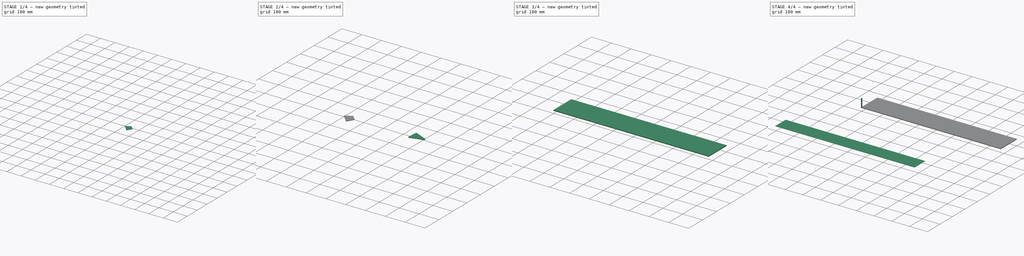
[diagram: build sequence overview — one tinted view per stage of 4, left to right]
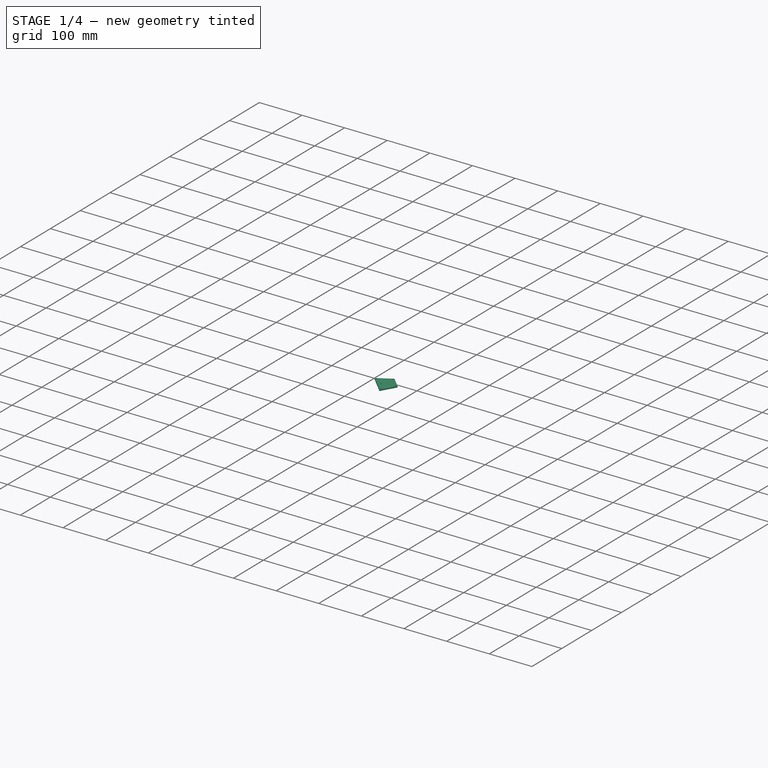
[diagram: stage 1 of 4 — iso view after this stage's code; geometry added in this stage tinted green]
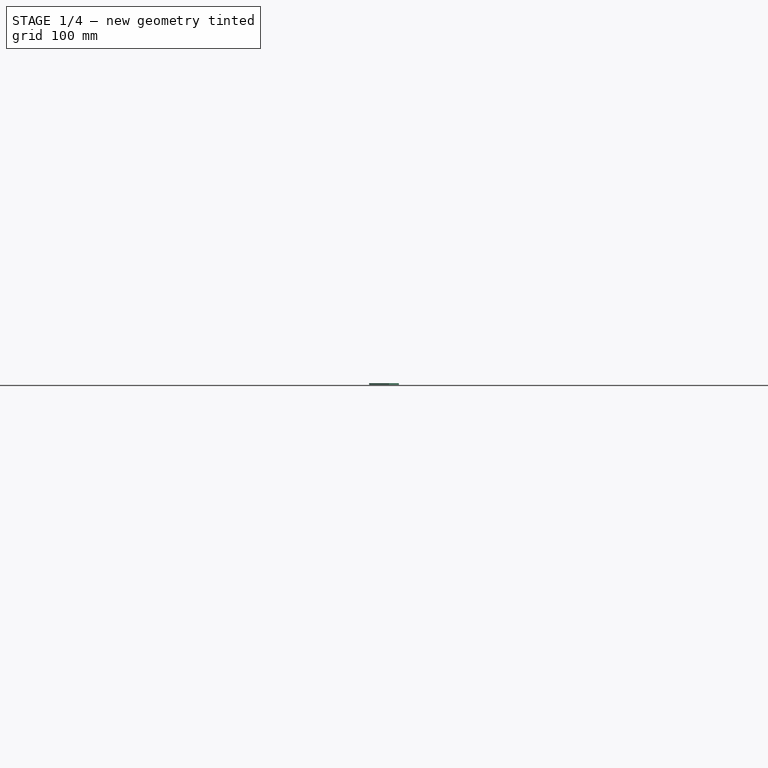
[diagram: stage 1 of 4 — front view after this stage's code; geometry added in this stage tinted green]
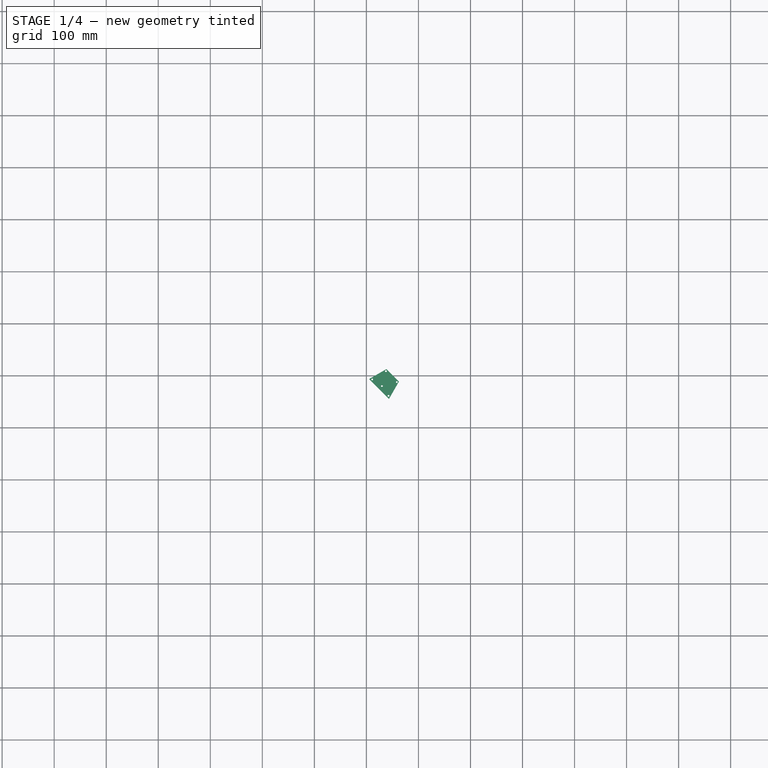
[diagram: stage 1 of 4 — top view after this stage's code; geometry added in this stage tinted green]
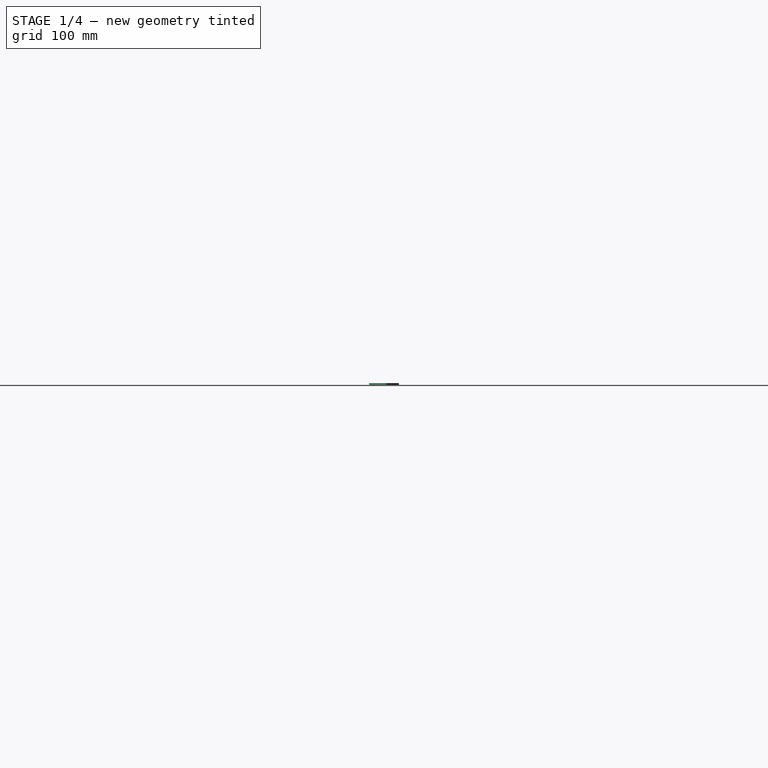
[diagram: stage 1 of 4 — right view after this stage's code; geometry added in this stage tinted green]
FCSTD DOCUMENT  (FreeCAD 0.21R32532 (Git))
Label: composit_full_size2part_top_cut
License: All rights reserved
LicenseURL: http://en.wikipedia.org/wiki/All_rights_reserved
objects: Part::FeaturePython×8, Path::FeaturePython×8, Sketcher::SketchObject×6, App::DocumentObjectGroup×6, PartDesign::Body×3, App::FeaturePython×2, PartDesign::Pad×2, PartDesign::SubShapeBinder×2, PartDesign::Hole×2, App::Link×1, Part::Feature×1, PartDesign::FeatureBase×1, Part::Part2DObjectPython×1
note: 32 computed .brp shape members not serialized (recipe doc carries the construction recipe); baked Part::Feature solids carry a one-line shape summary decoded from their .brp
EXTERNAL_REF file=composit_full_size2part.FCStd obj=Body070

FEATURE [PartDesign::Body] Body001
  Group = -> [Sketch,Pad,Binder,Hole]
  Origin = -> Origin001
  Tip = -> Hole
FEATURE [Sketcher::SketchObject] Sketch001
  FullyConstrained = true
  MapMode = 5
  Support = -> [XY_Plane002]
  sketch-geometry (4):
    g0: LineSegment StartX=-27 StartY=122 StartZ=0 EndX=-17 EndY=159 EndZ=0
    g1: LineSegment StartX=-17 StartY=159 StartZ=0 EndX=17 EndY=159 EndZ=0
    g2: LineSegment StartX=17 StartY=159 StartZ=0 EndX=27 EndY=122 EndZ=0
    g3: LineSegment StartX=27 StartY=122 StartZ=0 EndX=-27 EndY=122 EndZ=0
  constraints (10):
    c: Coincident(g0,g1)
    c: Coincident(g1,g2)
    c: Coincident(g2,g3)
    c: Coincident(g3,g0)
    c: Symmetric(g0,g2,g-2)
    c: Symmetric(g0,g1,g-2)
    c: DistanceX(g2) = 27
    c: DistanceY(g2) = 122
    c: DistanceX(g2,g1) = -10
    c: DistanceY(g2,g1) = 37
FEATURE [PartDesign::Pad] Pad001
  Direction = (0,0,1)
  Length = 3
  Length2 = 10
  Profile = -> Sketch001
  ReferenceAxis = -> Sketch001 [N_Axis]
  Type = 0
FEATURE [PartDesign::SubShapeBinder] Binder001
  BindCopyOnChange = 0
  BindMode = 0
  ClaimChildren = false
  Context = -> Body002 [Binder001.]
  Fuse = false
  MakeFace = true
  OffsetFill = false
  OffsetIntersection = false
  OffsetJoinType = 0
  OffsetOpenResult = false
  PartialLoad = false
  Relative = true
  Support = -> [Link[Hole102.Binder233.]]
  _Version = 2
FEATURE [PartDesign::Hole] Hole001
  BaseFeature = -> Pad001
  CustomThreadClearance = 0
  Depth = 25
  DepthType = 0
  Diameter = 3.4
  DrillForDepth = false
  DrillPoint = 1
  DrillPointAngle = 118
  HoleCutCountersinkAngle = 90
  HoleCutCustomValues = false
  HoleCutDepth = 0
  HoleCutDiameter = 6.1
  HoleCutType = 0
  ModelThread = false
  Profile = -> Binder001
  Reversed = true
  Tapered = false
  TaperedAngle = 90
  ThreadClass = 0
  ThreadDepth = 25
  ThreadDepthType = 0
  ThreadDirection = 0
  ThreadFit = 0
  ThreadSize = 0
  ThreadType = 0
  Threaded = false
  UseCustomThreadClearance = false
FEATURE [Part::FeaturePython] Clone003  label="Model-Body003"  # Draft clone (typed FeaturePython)
  AttacherType = Attacher::AttachEngine3D
  Fuse = false
  Objects = -> [Body002]
  PathResource = Model
  Placement = pos=(-62,-11.5,0) rot=(0,0,-1;0.785398rad)
  Scale = (1,1,1)
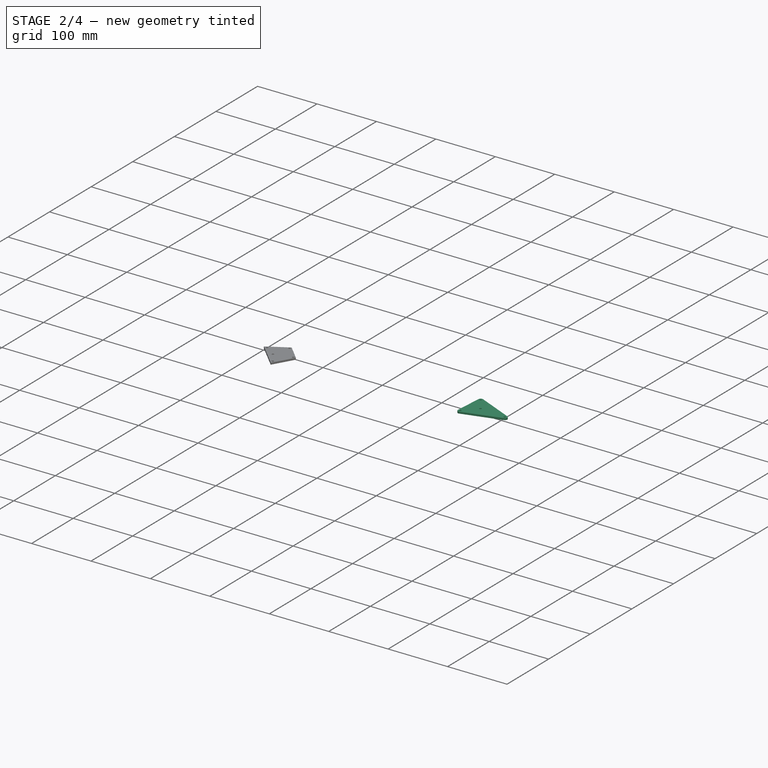
[diagram: stage 2 of 4 — iso view after this stage's code; geometry added in this stage tinted green]
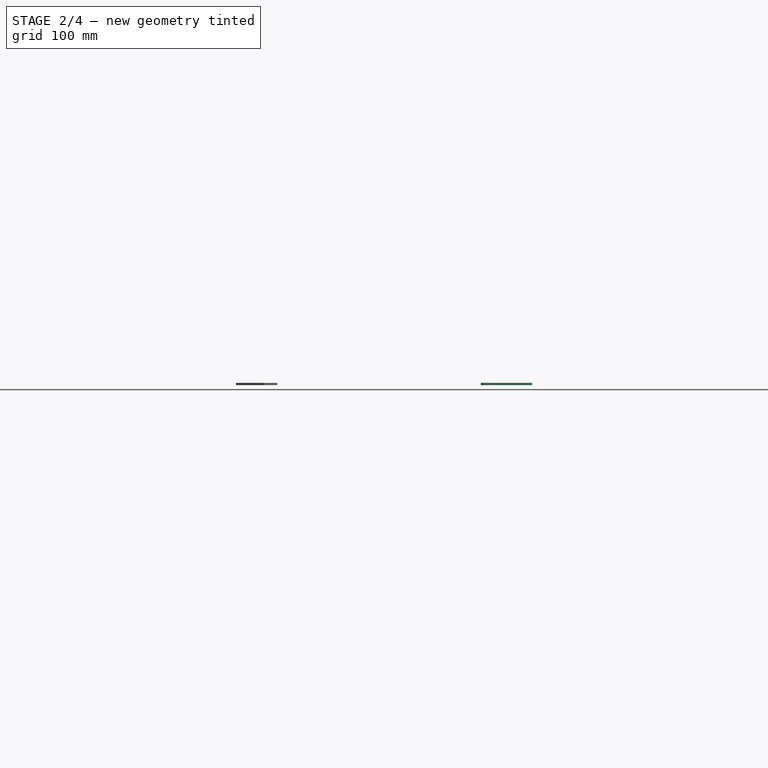
[diagram: stage 2 of 4 — front view after this stage's code; geometry added in this stage tinted green]
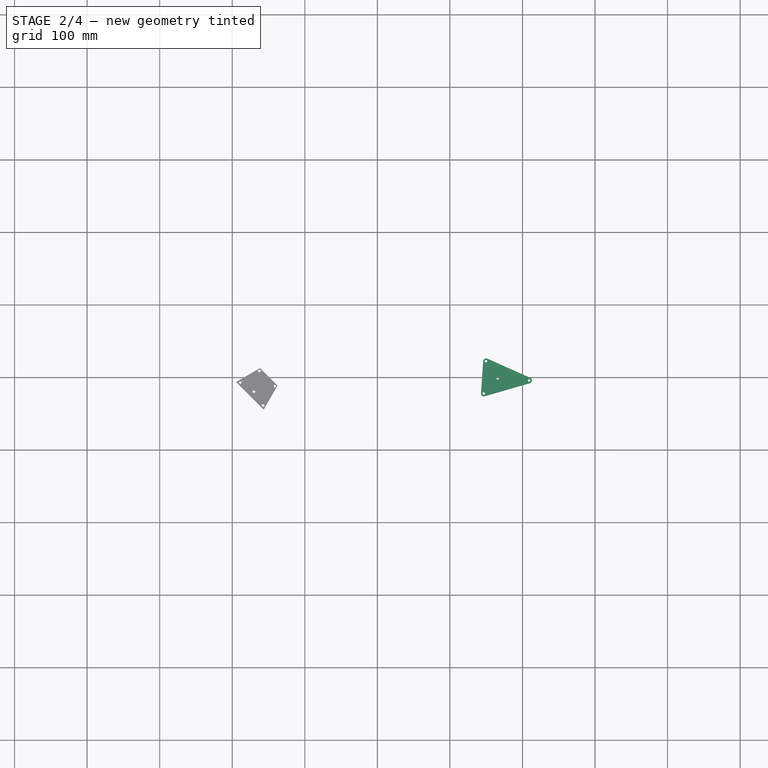
[diagram: stage 2 of 4 — top view after this stage's code; geometry added in this stage tinted green]
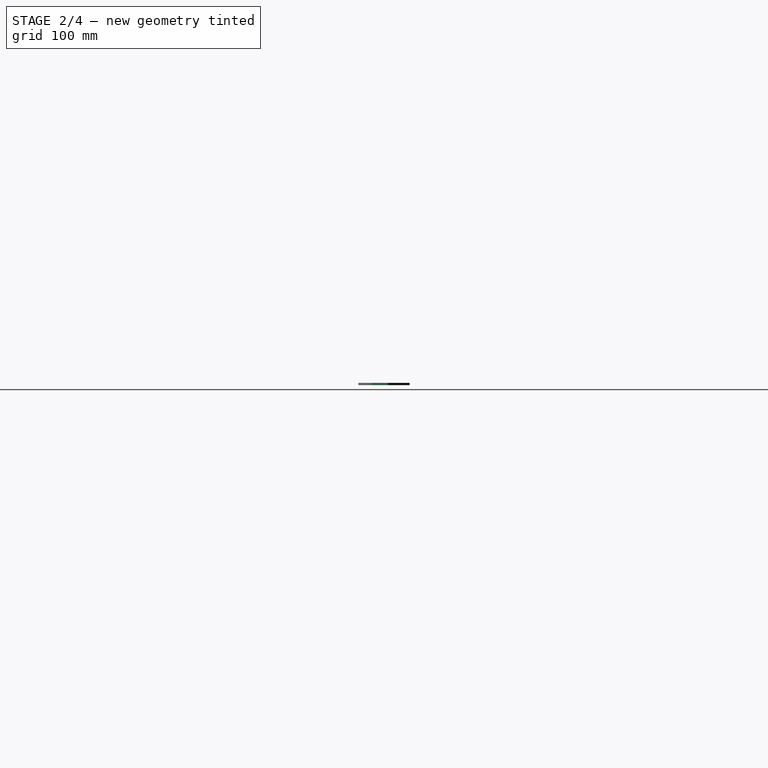
[diagram: stage 2 of 4 — right view after this stage's code; geometry added in this stage tinted green]
FEATURE [Path::FeaturePython] Deburr  # Path/CAM operation (typed FeaturePython)
  Active = true
  Base = -> [Clone001]
  ClearanceHeight = 6.3
  CoolantMode = 0
  CycleTime = 00:00:23
  Direction = 0
  EntryPoint = 0
  ExtraDepth = 0
  Join = 0
  OpStockZMax = 1.3
  OpStockZMin = 0
  OpToolDiameter = 10
  SafeHeight = 4.3
  Side = 0
  StartDepth = 1.3
  StepDown = 0
  ToolController = -> NZV6109015
  Width = -1.2
  expr: ClearanceHeight = OpStockZMax + SetupSheet001.ClearanceHeightOffset
  expr: SafeHeight = OpStockZMax + SetupSheet001.SafeHeightOffset
  expr: StepDown = 0 mm
FEATURE [App::DocumentObjectGroup] Operations001
  Group = -> [Engrave,Deburr]
FEATURE [Path::FeaturePython] Job001  # Path/CAM operation (typed FeaturePython)
  CycleTime = 00:01:16
  Fixtures = G54
  GeometryTolerance = 0.01
  JobType = 0
  LastPostProcessDate = 2023-05-17 11:53:52.439277
  LastPostProcessOutput = <userpath>/0744-27F3/2.tap
  Model = -> Model001
  Operations = -> Operations001
  OrderOutputBy = 0
  PostProcessor = 1
  PostProcessorOutputFile = %d.%j.tap
  SetupSheet = -> SetupSheet001
  SplitOutput = false
  Stock = -> Stock001
  Tools = -> Tools001
FEATURE [Sketcher::SketchObject] Sketch
  FullyConstrained = true
  MapMode = 5
  Support = -> [XY_Plane001]
  sketch-geometry (9):
    g0: ArcOfCircle CenterX=-1e-16 CenterY=-144.5 CenterZ=0 NormalX=0 NormalY=0 NormalZ=1 AngleXU=0 Radius=4 StartAngle=3.49179 EndAngle=5.93299
    g1: LineSegment StartX=-3.75722 StartY=-145.872 StartZ=0 EndX=3.75722 EndY=-145.872 EndZ=0
    g2: LineSegment StartX=3.75722 StartY=-145.872 StartZ=0 EndX=26.0377 EndY=-84.8723 EndZ=0
    g3: LineSegment StartX=22.2805 StartY=-79.5 StartZ=0 EndX=-22.2805 EndY=-79.5 EndZ=0
    g4: LineSegment StartX=-26.0377 StartY=-84.8723 StartZ=0 EndX=-3.75722 EndY=-145.872 EndZ=0
    g5: ArcOfCircle CenterX=22.2805 CenterY=-83.5 CenterZ=0 NormalX=0 NormalY=0 NormalZ=1 AngleXU=0 Radius=4 StartAngle=5.93299 EndAngle=7.85398
    g6: GeomPoint X=28 Y=-79.5 Z=0
    g7: ArcOfCircle CenterX=-22.2805 CenterY=-83.5 CenterZ=0 NormalX=0 NormalY=0 NormalZ=1 AngleXU=0 Radius=4 StartAngle=1.5708 EndAngle=3.49179
    g8: GeomPoint X=-28 Y=-79.5 Z=0
  constraints (21):
    c: PointOnObject(g0,g-2)
    c: Coincident(g1,g2)
    c: Coincident(g4,g1)
    c: Horizontal(g1)
    c: Coincident(g1,g0)
    c: Tangent(g2,g0) = -1.5708
    c: Diameter(g0) = 8
    c: Symmetric(g8,g6,g-2)
    c: DistanceX(g6) = 28
    c: DistanceY(g6) = -79.5
    c: DistanceY(g0) = -144.5
    c: PointOnObject(g6,g2)
    c: PointOnObject(g6,g3)
    c: Tangent(g2,g5) = -1.5708
    c: Tangent(g3,g5) = -1.5708
    c: PointOnObject(g8,g4)
    c: PointOnObject(g8,g3)
    c: Tangent(g4,g7) = -1.5708
    c: Tangent(g3,g7) = -1.5708
    c: Equal(g7,g5)
    c: Equal(g5,g0)
FEATURE [PartDesign::Pad] Pad
  Direction = (0,0,1)
  Length = 3
  Length2 = 10
  Profile = -> Sketch
  ReferenceAxis = -> Sketch [N_Axis]
  Type = 0
FEATURE [PartDesign::SubShapeBinder] Binder
  BindCopyOnChange = 0
  BindMode = 0
  ClaimChildren = false
  Context = -> Body001 [Binder.]
  Fuse = false
  MakeFace = true
  OffsetFill = false
  OffsetIntersection = false
  OffsetJoinType = 0
  OffsetOpenResult = false
  PartialLoad = false
  Relative = true
  Support = -> [Link[Hole102.Binder233.]]
  _Version = 2
FEATURE [PartDesign::Hole] Hole
  BaseFeature = -> Pad
  CustomThreadClearance = 0
  Depth = 25
  DepthType = 0
  Diameter = 3.4
  DrillForDepth = false
  DrillPoint = 1
  DrillPointAngle = 118
  HoleCutCountersinkAngle = 90
  HoleCutCustomValues = false
  HoleCutDepth = 0
  HoleCutDiameter = 6.1
  HoleCutType = 0
  ModelThread = false
  Profile = -> Binder
  Reversed = true
  Tapered = false
  TaperedAngle = 90
  ThreadClass = 0
  ThreadDepth = 25
  ThreadDepthType = 0
  ThreadDirection = 0
  ThreadFit = 0
  ThreadSize = 0
  ThreadType = 0
  Threaded = false
  UseCustomThreadClearance = false
FEATURE [PartDesign::Body] Body002
  Group = -> [Sketch001,Pad001,Binder001,Hole001]
  Origin = -> Origin002
  Tip = -> Hole001
FEATURE [Part::FeaturePython] Clone002  label="Model-Body002"  # Draft clone (typed FeaturePython)
  AttacherType = Attacher::AttachEngine3D
  Fuse = false
  Objects = -> [Body001]
  PathResource = Model
  Placement = pos=(265,106,0) rot=(0,0,1;1.50098rad)
  Scale = (1,1,1)
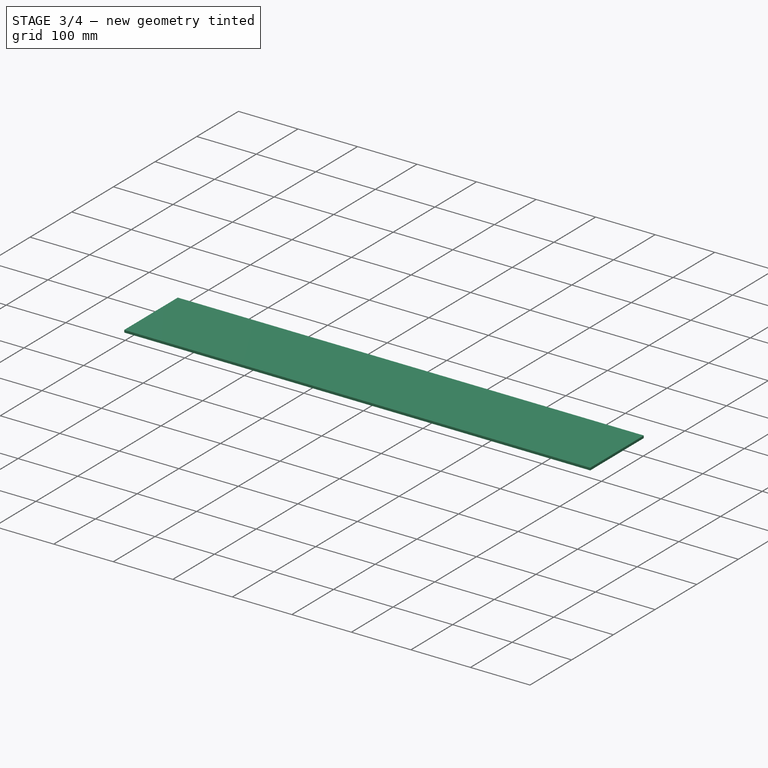
[diagram: stage 3 of 4 — iso view after this stage's code; geometry added in this stage tinted green]
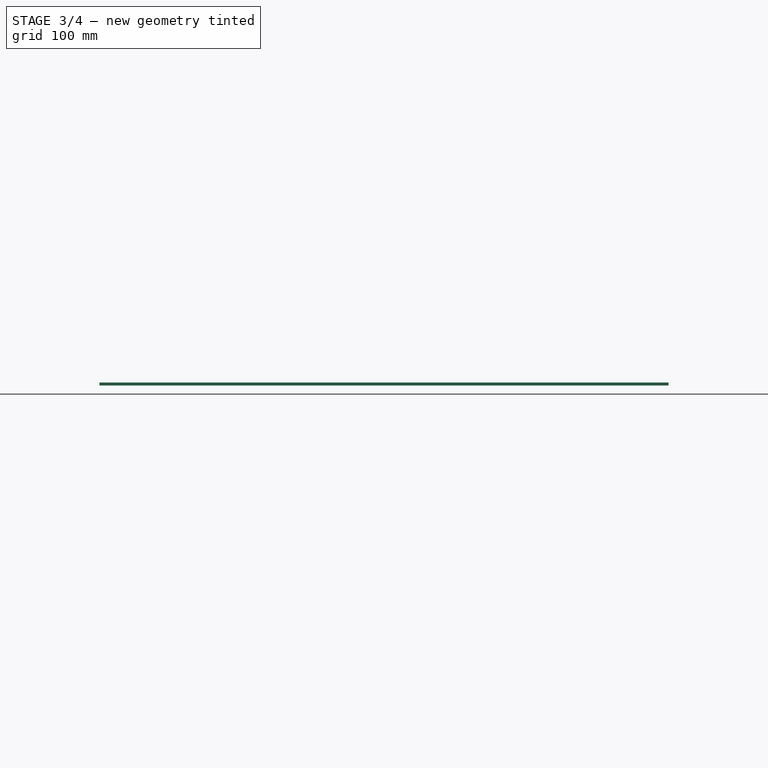
[diagram: stage 3 of 4 — front view after this stage's code; geometry added in this stage tinted green]
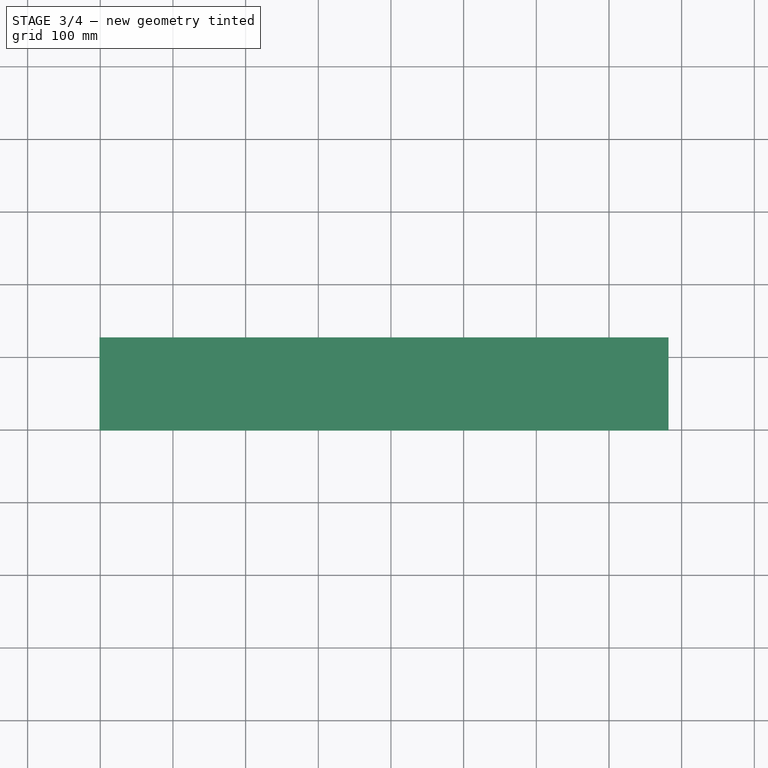
[diagram: stage 3 of 4 — top view after this stage's code; geometry added in this stage tinted green]
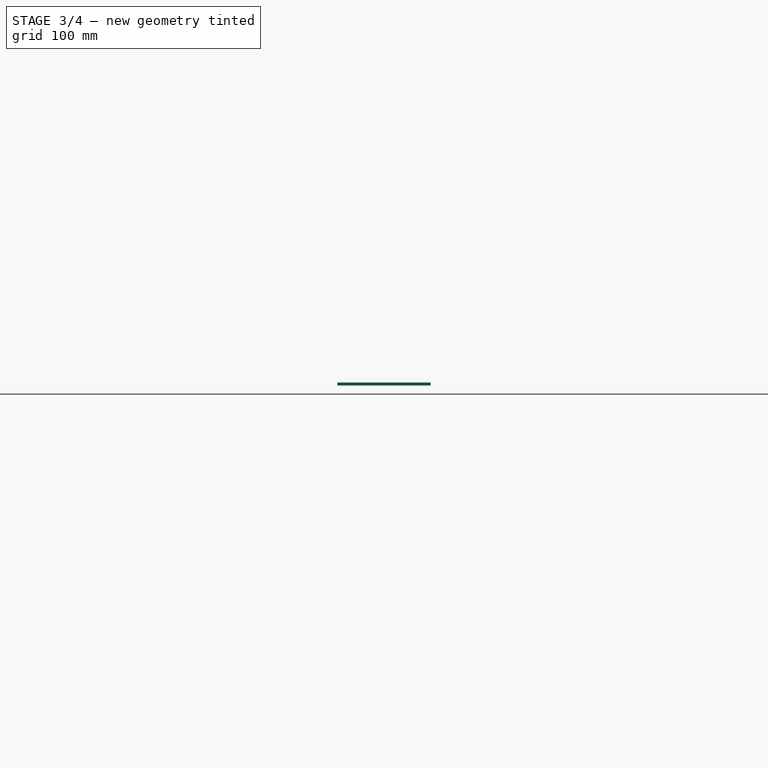
[diagram: stage 3 of 4 — right view after this stage's code; geometry added in this stage tinted green]
FEATURE [App::Link] Link  label="Body070"
  LinkedObject = -> <external composit_full_size2part.FCStd>#Body070
FEATURE [Part::Feature] Unfold
  Placement = pos=(0,0,-40.1) rot=(0,0,-1;1.5708rad)
  shape: bbox 81.95 x 780.8 x 0.3 mm, 50 faces (baked)
FEATURE [Sketcher::SketchObject] Unfold_Sketch
  FullyConstrained = false
  sketch-geometry (52):
    g0: LineSegment StartX=-128.481 StartY=47.3859 StartZ=0 EndX=-170.09 EndY=60.7326 EndZ=0
    g1: LineSegment StartX=-128.481 StartY=47.3859 StartZ=0 EndX=-140.172 EndY=31.0364 EndZ=0
    g2: LineSegment StartX=-170.09 StartY=15.6504 StartZ=0 EndX=-140.172 EndY=31.0364 EndZ=0
    g3: LineSegment StartX=-170.09 StartY=-15.3471 StartZ=0 EndX=-140.248 EndY=-5.3e-15 EndZ=0
    g4: LineSegment StartX=-140.248 StartY=5.3e-15 StartZ=0 EndX=-170.09 EndY=15.3471 EndZ=0
    g5: LineSegment StartX=-170.09 StartY=-60.7326 StartZ=0 EndX=-128.481 EndY=-47.3859 EndZ=0
    g6: LineSegment StartX=-128.481 StartY=-47.3859 StartZ=0 EndX=-140.172 EndY=-31.0364 EndZ=0
    g7: LineSegment StartX=-140.172 StartY=-31.0364 StartZ=0 EndX=-170.09 EndY=-15.6504 EndZ=0
    g8: LineSegment StartX=-128.45 StartY=-326.97 StartZ=0 EndX=-170.09 EndY=-351.011 EndZ=0
    g9: LineSegment StartX=-128.45 StartY=-326.97 StartZ=0 EndX=-128.45 EndY=-74.3186 EndZ=0
    g10: LineSegment StartX=-128.45 StartY=-74.3186 StartZ=0 EndX=-170.09 EndY=-60.962 EndZ=0
    g11: LineSegment StartX=-128.5 StartY=-375.349 StartZ=0 EndX=-154.6 EndY=-390.418 EndZ=0
    g12: LineSegment StartX=-128.5 StartY=-375.349 StartZ=0 EndX=-170.09 EndY=-351.337 EndZ=0
    g13: LineSegment StartX=-128.5 StartY=375.349 StartZ=0 EndX=-154.6 EndY=390.418 EndZ=0
    g14: LineSegment StartX=-170.09 StartY=351.337 StartZ=0 EndX=-128.5 EndY=375.349 EndZ=0
    g15: LineSegment StartX=-128.45 StartY=326.97 StartZ=0 EndX=-170.09 EndY=351.011 EndZ=0
    g16: LineSegment StartX=-128.45 StartY=74.3186 StartZ=0 EndX=-128.45 EndY=326.97 EndZ=0
    g17: LineSegment StartX=-128.45 StartY=74.3186 StartZ=0 EndX=-170.09 EndY=60.962 EndZ=0
    g18: Circle CenterX=-155.371 CenterY=40.1759 CenterZ=0 NormalX=0 NormalY=0 NormalZ=1 AngleXU=2.5208 Radius=1.7
    g19: Circle CenterX=-155.371 CenterY=-40.1759 CenterZ=0 NormalX=0 NormalY=0 NormalZ=1 AngleXU=0.620791 Radius=1.7
    g20: Circle CenterX=-149.45 CenterY=-89.6365 CenterZ=0 NormalX=0 NormalY=0 NormalZ=1 AngleXU=0 Radius=1.7
    g21: Circle CenterX=-149.45 CenterY=89.6365 CenterZ=0 NormalX=0 NormalY=0 NormalZ=1 AngleXU=-3.14159 Radius=1.7
    g22: Circle CenterX=-160.972 CenterY=0 CenterZ=0 NormalX=0 NormalY=0 NormalZ=1 AngleXU=1.5708 Radius=1.7
    g23: Circle CenterX=-149.45 CenterY=-322.948 CenterZ=0 NormalX=0 NormalY=0 NormalZ=1 AngleXU=0 Radius=1.7
    g24: Circle CenterX=-156.467 CenterY=-375.349 CenterZ=0 NormalX=0 NormalY=0 NormalZ=1 AngleXU=-1.0472 Radius=1.7
    g25: Circle CenterX=-149.45 CenterY=322.948 CenterZ=0 NormalX=0 NormalY=0 NormalZ=1 AngleXU=-3.14159 Radius=1.7
    g26: Circle CenterX=-156.467 CenterY=375.349 CenterZ=0 NormalX=0 NormalY=0 NormalZ=1 AngleXU=-2.0944 Radius=1.7
    g27: LineSegment StartX=-170.09 StartY=60.7326 StartZ=0 EndX=-170.498 EndY=60.7326 EndZ=0
    g28: LineSegment StartX=-170.498 StartY=60.7326 StartZ=0 EndX=-170.498 EndY=60.962 EndZ=0
    g29: LineSegment StartX=-170.498 StartY=60.962 StartZ=0 EndX=-170.09 EndY=60.962 EndZ=0
    g30: LineSegment StartX=-170.09 StartY=351.011 StartZ=0 EndX=-170.498 EndY=351.011 EndZ=0
    g31: LineSegment StartX=-170.498 StartY=351.011 StartZ=0 EndX=-170.498 EndY=351.337 EndZ=0
    g32: LineSegment StartX=-170.498 StartY=351.337 StartZ=0 EndX=-170.09 EndY=351.337 EndZ=0
    g33: LineSegment StartX=-210.398 StartY=390.418 StartZ=0 EndX=-154.6 EndY=390.418 EndZ=0
    g34: LineSegment StartX=-210.398 StartY=15.589 StartZ=0 EndX=-210.398 EndY=390.418 EndZ=0
    g35: LineSegment StartX=-210.398 StartY=15.4085 StartZ=0 EndX=-210.398 EndY=15.589 EndZ=0
    g36: LineSegment StartX=-210.398 StartY=-15.4085 StartZ=0 EndX=-210.398 EndY=15.4085 EndZ=0
    g37: LineSegment StartX=-210.398 StartY=-15.589 StartZ=0 EndX=-210.398 EndY=-15.4085 EndZ=0
    g38: LineSegment StartX=-210.398 StartY=-15.589 StartZ=0 EndX=-210.398 EndY=-390.418 EndZ=0
    g39: LineSegment StartX=-210.398 StartY=-390.418 StartZ=0 EndX=-154.6 EndY=-390.418 EndZ=0
    g40: LineSegment StartX=-170.09 StartY=-351.337 StartZ=0 EndX=-170.498 EndY=-351.337 EndZ=0
    g41: LineSegment StartX=-170.498 StartY=-351.011 StartZ=0 EndX=-170.498 EndY=-351.337 EndZ=0
    g42: LineSegment StartX=-170.498 StartY=-351.011 StartZ=0 EndX=-170.09 EndY=-351.011 EndZ=0
    g43: LineSegment StartX=-170.09 StartY=-60.962 StartZ=0 EndX=-170.498 EndY=-60.962 EndZ=0
    g44: LineSegment StartX=-170.498 StartY=-60.7326 StartZ=0 EndX=-170.498 EndY=-60.962 EndZ=0
    g45: LineSegment StartX=-170.498 StartY=-60.7326 StartZ=0 EndX=-170.09 EndY=-60.7326 EndZ=0
    g46: LineSegment StartX=-170.09 StartY=-15.6504 StartZ=0 EndX=-170.498 EndY=-15.6504 EndZ=0
    g47: LineSegment StartX=-170.498 StartY=-15.3471 StartZ=0 EndX=-170.498 EndY=-15.6504 EndZ=0
    g48: LineSegment StartX=-170.498 StartY=-15.3471 StartZ=0 EndX=-170.09 EndY=-15.3471 EndZ=0
    g49: LineSegment StartX=-170.09 StartY=15.3471 StartZ=0 EndX=-170.498 EndY=15.3471 EndZ=0
    g50: LineSegment StartX=-170.498 StartY=15.3471 StartZ=0 EndX=-170.498 EndY=15.6504 EndZ=0
    g51: LineSegment StartX=-170.498 StartY=15.6504 StartZ=0 EndX=-170.09 EndY=15.6504 EndZ=0
FEATURE [Sketcher::SketchObject] Unfold_Sketch_Outline
  FullyConstrained = false
  sketch-geometry (43):
    g0: LineSegment StartX=-170.498 StartY=-15.3471 StartZ=0 EndX=-170.09 EndY=-15.3471 EndZ=0
    g1: LineSegment StartX=-170.09 StartY=-15.3471 StartZ=0 EndX=-140.248 EndY=-5.3e-15 EndZ=0
    g2: LineSegment StartX=-140.248 StartY=5.3e-15 StartZ=0 EndX=-170.09 EndY=15.3471 EndZ=0
    g3: LineSegment StartX=-170.09 StartY=15.3471 StartZ=0 EndX=-170.498 EndY=15.3471 EndZ=0
    g4: LineSegment StartX=-170.498 StartY=15.3471 StartZ=0 EndX=-170.498 EndY=15.6504 EndZ=0
    g5: LineSegment StartX=-170.498 StartY=15.6504 StartZ=0 EndX=-170.09 EndY=15.6504 EndZ=0
    g6: LineSegment StartX=-170.09 StartY=15.6504 StartZ=0 EndX=-140.172 EndY=31.0364 EndZ=0
    g7: LineSegment StartX=-128.481 StartY=47.3859 StartZ=0 EndX=-140.172 EndY=31.0364 EndZ=0
    g8: LineSegment StartX=-128.481 StartY=47.3859 StartZ=0 EndX=-170.09 EndY=60.7326 EndZ=0
    g9: LineSegment StartX=-170.09 StartY=60.7326 StartZ=0 EndX=-170.498 EndY=60.7326 EndZ=0
    g10: LineSegment StartX=-170.498 StartY=60.7326 StartZ=0 EndX=-170.498 EndY=60.962 EndZ=0
    g11: LineSegment StartX=-170.498 StartY=60.962 StartZ=0 EndX=-170.09 EndY=60.962 EndZ=0
    g12: LineSegment StartX=-128.45 StartY=74.3186 StartZ=0 EndX=-170.09 EndY=60.962 EndZ=0
    g13: LineSegment StartX=-128.45 StartY=74.3186 StartZ=0 EndX=-128.45 EndY=326.97 EndZ=0
    g14: LineSegment StartX=-128.45 StartY=326.97 StartZ=0 EndX=-170.09 EndY=351.011 EndZ=0
    g15: LineSegment StartX=-170.09 StartY=351.011 StartZ=0 EndX=-170.498 EndY=351.011 EndZ=0
    g16: LineSegment StartX=-170.498 StartY=351.011 StartZ=0 EndX=-170.498 EndY=351.337 EndZ=0
    g17: LineSegment StartX=-170.498 StartY=351.337 StartZ=0 EndX=-170.09 EndY=351.337 EndZ=0
    g18: LineSegment StartX=-170.09 StartY=351.337 StartZ=0 EndX=-128.5 EndY=375.349 EndZ=0
    g19: LineSegment StartX=-128.5 StartY=375.349 StartZ=0 EndX=-154.6 EndY=390.418 EndZ=0
    g20: LineSegment StartX=-210.398 StartY=390.418 StartZ=0 EndX=-154.6 EndY=390.418 EndZ=0
    g21: LineSegment StartX=-210.398 StartY=15.589 StartZ=0 EndX=-210.398 EndY=390.418 EndZ=0
    g22: LineSegment StartX=-210.398 StartY=15.4085 StartZ=0 EndX=-210.398 EndY=15.589 EndZ=0
    g23: LineSegment StartX=-210.398 StartY=-15.4085 StartZ=0 EndX=-210.398 EndY=15.4085 EndZ=0
    g24: LineSegment StartX=-210.398 StartY=-15.589 StartZ=0 EndX=-210.398 EndY=-15.4085 EndZ=0
    g25: LineSegment StartX=-210.398 StartY=-15.589 StartZ=0 EndX=-210.398 EndY=-390.418 EndZ=0
    g26: LineSegment StartX=-210.398 StartY=-390.418 StartZ=0 EndX=-154.6 EndY=-390.418 EndZ=0
    g27: LineSegment StartX=-128.5 StartY=-375.349 StartZ=0 EndX=-154.6 EndY=-390.418 EndZ=0
    g28: LineSegment StartX=-128.5 StartY=-375.349 StartZ=0 EndX=-170.09 EndY=-351.337 EndZ=0
    g29: LineSegment StartX=-170.09 StartY=-351.337 StartZ=0 EndX=-170.498 EndY=-351.337 EndZ=0
    g30: LineSegment StartX=-170.498 StartY=-351.011 StartZ=0 EndX=-170.498 EndY=-351.337 EndZ=0
    g31: LineSegment StartX=-170.498 StartY=-351.011 StartZ=0 EndX=-170.09 EndY=-351.011 EndZ=0
    g32: LineSegment StartX=-128.45 StartY=-326.97 StartZ=0 EndX=-170.09 EndY=-351.011 EndZ=0
    g33: LineSegment StartX=-128.45 StartY=-326.97 StartZ=0 EndX=-128.45 EndY=-74.3186 EndZ=0
    g34: LineSegment StartX=-128.45 StartY=-74.3186 StartZ=0 EndX=-170.09 EndY=-60.962 EndZ=0
    g35: LineSegment StartX=-170.09 StartY=-60.962 StartZ=0 EndX=-170.498 EndY=-60.962 EndZ=0
    g36: LineSegment StartX=-170.498 StartY=-60.7326 StartZ=0 EndX=-170.498 EndY=-60.962 EndZ=0
    g37: LineSegment StartX=-170.498 StartY=-60.7326 StartZ=0 EndX=-170.09 EndY=-60.7326 EndZ=0
    g38: LineSegment StartX=-170.09 StartY=-60.7326 StartZ=0 EndX=-128.481 EndY=-47.3859 EndZ=0
    g39: LineSegment StartX=-128.481 StartY=-47.3859 StartZ=0 EndX=-140.172 EndY=-31.0364 EndZ=0
    g40: LineSegment StartX=-140.172 StartY=-31.0364 StartZ=0 EndX=-170.09 EndY=-15.6504 EndZ=0
    g41: LineSegment StartX=-170.09 StartY=-15.6504 StartZ=0 EndX=-170.498 EndY=-15.6504 EndZ=0
    g42: LineSegment StartX=-170.498 StartY=-15.3471 StartZ=0 EndX=-170.498 EndY=-15.6504 EndZ=0
FEATURE [Sketcher::SketchObject] Unfold_Sketch_Internal
  FullyConstrained = false
  sketch-geometry (9):
    g0: Circle CenterX=-156.467 CenterY=375.349 CenterZ=0 NormalX=0 NormalY=0 NormalZ=1 AngleXU=-2.0944 Radius=1.7
    g1: Circle CenterX=-156.467 CenterY=-375.349 CenterZ=0 NormalX=0 NormalY=0 NormalZ=1 AngleXU=-1.0472 Radius=1.7
    g2: Circle CenterX=-155.371 CenterY=-40.1759 CenterZ=0 NormalX=0 NormalY=0 NormalZ=1 AngleXU=0.620791 Radius=1.7
    g3: Circle CenterX=-155.371 CenterY=40.1759 CenterZ=0 NormalX=0 NormalY=0 NormalZ=1 AngleXU=2.5208 Radius=1.7
    g4: Circle CenterX=-149.45 CenterY=322.948 CenterZ=0 NormalX=0 NormalY=0 NormalZ=1 AngleXU=-3.14159 Radius=1.7
    g5: Circle CenterX=-149.45 CenterY=-322.948 CenterZ=0 NormalX=0 NormalY=0 NormalZ=1 AngleXU=0 Radius=1.7
    g6: Circle CenterX=-149.45 CenterY=89.6365 CenterZ=0 NormalX=0 NormalY=0 NormalZ=1 AngleXU=-3.14159 Radius=1.7
    g7: Circle CenterX=-149.45 CenterY=-89.6365 CenterZ=0 NormalX=0 NormalY=0 NormalZ=1 AngleXU=0 Radius=1.7
    g8: Circle CenterX=-160.972 CenterY=0 CenterZ=0 NormalX=0 NormalY=0 NormalZ=1 AngleXU=1.5708 Radius=1.7
FEATURE [Sketcher::SketchObject] Unfold_Sketch_bends
  FullyConstrained = false
  sketch-geometry (13):
    g0: LineSegment StartX=-170.249 StartY=15.6504 StartZ=0 EndX=-170.249 EndY=60.7326 EndZ=0
    g1: LineSegment StartX=-170.249 StartY=60.962 StartZ=0 EndX=-170.249 EndY=351.011 EndZ=0
    g2: LineSegment StartX=-170.249 StartY=351.337 StartZ=0 EndX=-170.249 EndY=390.418 EndZ=0
    g3: LineSegment StartX=-170.498 StartY=351.174 StartZ=0 EndX=-210.398 EndY=351.174 EndZ=0
    g4: LineSegment StartX=-170.498 StartY=60.8473 StartZ=0 EndX=-210.398 EndY=60.8473 EndZ=0
    g5: LineSegment StartX=-170.498 StartY=15.4987 StartZ=0 EndX=-210.398 EndY=15.4987 EndZ=0
    g6: LineSegment StartX=-170.249 StartY=-15.6504 StartZ=0 EndX=-170.249 EndY=-60.7326 EndZ=0
    g7: LineSegment StartX=-170.249 StartY=-60.962 StartZ=0 EndX=-170.249 EndY=-351.011 EndZ=0
    g8: LineSegment StartX=-170.249 StartY=-351.337 StartZ=0 EndX=-170.249 EndY=-390.418 EndZ=0
    g9: LineSegment StartX=-170.498 StartY=-351.174 StartZ=0 EndX=-210.398 EndY=-351.174 EndZ=0
    g10: LineSegment StartX=-170.498 StartY=-60.8473 StartZ=0 EndX=-210.398 EndY=-60.8473 EndZ=0
    g11: LineSegment StartX=-170.498 StartY=-15.4987 StartZ=0 EndX=-210.398 EndY=-15.4987 EndZ=0
    g12: LineSegment StartX=-170.249 StartY=15.3471 StartZ=0 EndX=-170.249 EndY=-15.3471 EndZ=0
FEATURE [PartDesign::FeatureBase] BaseFeature
  BaseFeature = -> Unfold
  Placement = pos=(0,0,-40.1) rot=(0,0,-1;1.5708rad)
  expr: Placement = Unfold.Placement
FEATURE [PartDesign::Body] Body
  BaseFeature = -> Unfold
  Group = -> [BaseFeature]
  Origin = -> Origin
  Tip = -> BaseFeature
FEATURE [App::FeaturePython] SetupSheet  # Path/CAM operation (typed FeaturePython)
  ClearanceHeightExpression = OpStockZMax+SetupSheet.ClearanceHeightOffset
  ClearanceHeightOffset = 5
  CoolantMode = 0
  CoolantModes = None | Flood | Mist
  FinalDepthExpression = -0.1 mm
  HorizRapid = 0
  ProfileDirection = 1
  ProfileSide = 0
  ProfileUseComp = true
  ProfileprocessCircles = true
  ProfileprocessHoles = true
  ProfileprocessPerimeter = true
  SafeHeightExpression = OpStockZMax+SetupSheet.SafeHeightOffset
  SafeHeightOffset = 3
  StartDepthExpression = 3 mm
  StepDownExpression = 4 mm
  VertRapid = 0
FEATURE [Part::FeaturePython] Clone  label="Model-Body"  # Draft clone (typed FeaturePython)
  AttacherType = Attacher::AttachEngine3D
  Fuse = false
  Objects = -> [Body]
  PathResource = Model
  Placement = pos=(390.418,210.398,-2.061e-13) rot=(0,0,1;1.5708rad)
  Scale = (1,1,1)
FEATURE [Path::FeaturePython] NZV6109015  label="NZV6109016"  # Path/CAM operation (typed FeaturePython)
  HorizFeed = 51.6667
  HorizRapid = 0
  SpindleDir = 0
  SpindleSpeed = 18000
  Tool = -> ToolBit001
  ToolNumber = 2
  VertFeed = 16.6667
  VertRapid = 0
  expr: HorizRapid = SetupSheet001.HorizRapid
  expr: VertRapid = SetupSheet001.VertRapid
FEATURE [App::DocumentObjectGroup] Tools001
  Group = -> [NZV6109015]
FEATURE [Path::FeaturePython] Engrave  # Path/CAM operation (typed FeaturePython)
  Active = true
  ClearanceHeight = 6.3
  CoolantMode = 0
  CycleTime = 00:00:53
  FinalDepth = 0.6
  OpFinalDepth = -9.7
  OpStartDepth = 0.3
  OpStockZMax = 1.3
  OpStockZMin = 0
  OpToolDiameter = 10
  SafeHeight = 4.3
  StartDepth = 3
  StartVertex = 0
  StepDown = 10
  ToolController = -> NZV6109015
  expr: ClearanceHeight = OpStockZMax + SetupSheet001.ClearanceHeightOffset
  expr: FinalDepth = 0.6 mm
  expr: SafeHeight = OpStockZMax + SetupSheet001.SafeHeightOffset
  expr: StartDepth = 3 mm
  expr: StepDown = OpToolDiameter
FEATURE [Part::FeaturePython] Clone001  label="Model-Body001"  # Draft clone (typed FeaturePython)
  AttacherType = Attacher::AttachEngine3D
  Fuse = false
  Objects = -> [Body]
  PathResource = Model
  Placement = pos=(390.418,210.398,-2.061e-13) rot=(0,0,1;1.5708rad)
  Scale = (1,1,1)
  expr: Placement = <<Model-Body>>.Placement
FEATURE [App::DocumentObjectGroup] Model
  Group = -> [Clone,Clone002,Clone003]
FEATURE [Path::FeaturePython] Profile  # Path/CAM operation (typed FeaturePython)
  Active = true
  AreaParams:
    Tolerance = 1e-07
    FitArcs = True
    Simplify = False
    CleanDistance = 0.0
    Accuracy = 0.01
    Unit = 1.0
    MinArcPoints = 4
    MaxArcPoints = 100
    ClipperScale = 10000000.0
    Fill = 0
    Coplanar = 0
    Reorient = True
    Outline = False
    Explode = False
    OpenMode = 0
    Deflection = 0.01
    SubjectFill = 0
    ClipFill = 0
    Offset = -1.585
    ExtraPass = 0
    Stepover = 0.0
    LastStepover = 0.0
    JoinType = 0
    EndType = 0
    MiterLimit = 2.0
    RoundPrecision = 0.0
    PocketMode = 0
    ToolRadius = 1.0
    PocketExtraOffset = 0.0
    PocketStepover = 0.0
    PocketLastStepover = 0.0
    FromCenter = False
    Angle = 45.0
    AngleShift = 0.0
    Shift = 0.0
    Thicken = False
    SectionCount = -1
    Stepdown = 1.0
    SectionOffset = 0.0
    SectionTolerance = 1e-07
    SectionMode = 2
    Project = False
  Base = -> [Clone,Clone003,Clone002]
  ClearanceHeight = 9
  CoolantMode = 0
  CycleTime = 00:01:15
  Direction = 1
  FinalDepth = -0.1
  HandleMultipleFeatures = 0
  JoinType = 0
  MiterLimit = 0.1
  OffsetExtra = 0
  OpFinalDepth = -2.558e-13
  OpStartDepth = 4
  OpStockZMax = 4
  OpStockZMin = -2.636e-13
  OpToolDiameter = 3.17
  PathParams = {'orientation': 1, 'feedrate': 33.333333333333336, 'feedrate_v': 8.333333333333334, 'verbose': True, 'resume_height': 7.0, 'retraction': 9.0, 'return_end': True, 'preamble': False, 'start': Vector (713.2594542623324, 60.9484719132067, 9.0)}
  SafeHeight = 7
  Side = 0
  SplitArcs = false
  StartDepth = 3
  StartPoint = (0,0,0)
  StepDown = 4
  ToolController = -> __175mm_Endmill
  UseComp = true
  UseStartPoint = false
  processCircles = true
  processHoles = true
  processPerimeter = false
  expr: ClearanceHeight = OpStockZMax + SetupSheet.ClearanceHeightOffset
  expr: FinalDepth = -0.1 mm
  expr: SafeHeight = OpStockZMax + SetupSheet.SafeHeightOffset
  expr: StartDepth = 3 mm
  expr: StepDown = 4 mm
FEATURE [App::DocumentObjectGroup] Operations
  Group = -> [Profile,Profile001]
FEATURE [Part::FeaturePython] Stock002  # WARN: FeaturePython — macro-defined, semantics opaque (R4)
  Base = -> Model
  ExtXneg = 1
  ExtXpos = 1
  ExtYneg = 1
  ExtYpos = 1
  ExtZneg = 0
  ExtZpos = 1
  Placement = pos=(0,0,-2.64e-13) rot=(0,0,1;0rad)
  StockType = FromBase
FEATURE [Path::FeaturePython] Job  # Path/CAM operation (typed FeaturePython)
  CycleTime = 00:02:45
  Fixtures = G54
  GeometryTolerance = 0.01
  JobType = 0
  LastPostProcessDate = 2023-05-17 11:56:10.371253
  LastPostProcessOutput = <userpath>/0744-27F3/1.tap \n<userpath>/0744-27F3/3.tap
  Model = -> Model
  Operations = -> Operations
  OrderOutputBy = 2
  PostProcessor = 1
  PostProcessorOutputFile = %d.%j.tap
  SetupSheet = -> SetupSheet
  SplitOutput = true
  Stock = -> Stock002
  Tools = -> Tools
note: 2 file-system paths scrubbed to <path> (originals preserved in the JSON sidecar)
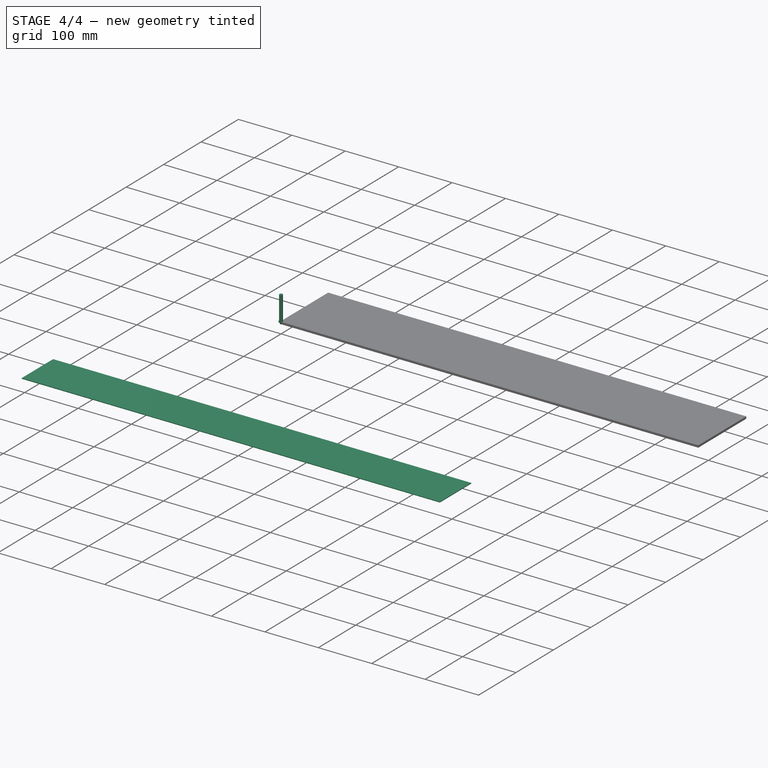
[diagram: stage 4 of 4 — iso view after this stage's code; geometry added in this stage tinted green]
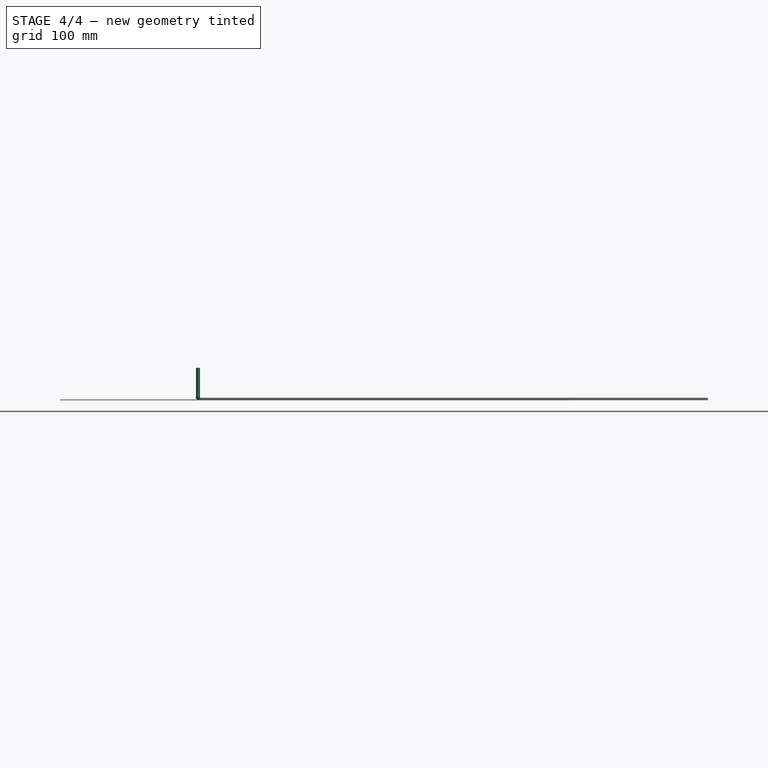
[diagram: stage 4 of 4 — front view after this stage's code; geometry added in this stage tinted green]
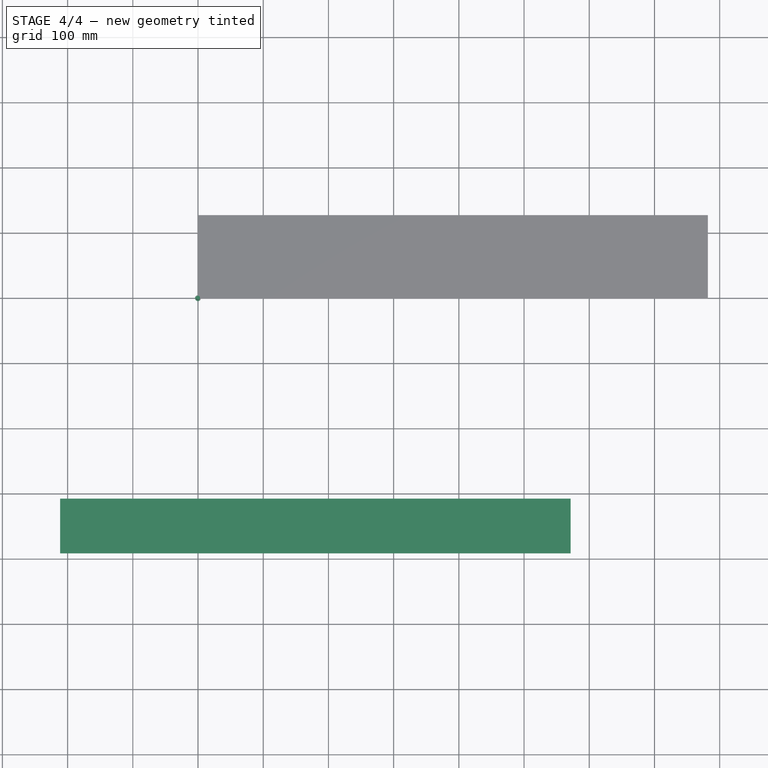
[diagram: stage 4 of 4 — top view after this stage's code; geometry added in this stage tinted green]
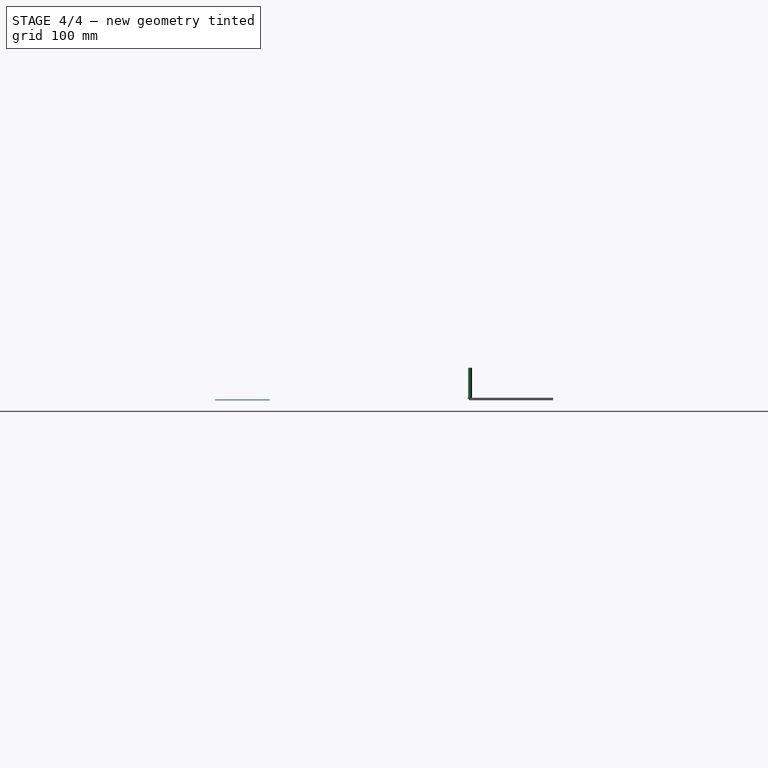
[diagram: stage 4 of 4 — right view after this stage's code; geometry added in this stage tinted green]
FEATURE [Part::FeaturePython] ToolBit  label="3.175mm Endmill"  # Path/CAM toolbit (typed FeaturePython)
  BitPropertyNames = Chipload | CuttingEdgeHeight | Diameter | Flutes | Length | Material | ShankDiameter | SpindleDirection
  BitShape = <path>
  Chipload = 0
  CuttingEdgeHeight = 30
  Diameter = 3.17
  Flutes = 0
  Length = 10
  Material = 0
  ShankDiameter = 3
  ShapeName = endmill
  SpindleDirection = 0
FEATURE [Path::FeaturePython] __175mm_Endmill  label="3.175mm Endmill001"  # Path/CAM operation (typed FeaturePython)
  HorizFeed = 33.3333
  HorizRapid = 0
  SpindleDir = 0
  SpindleSpeed = 18000
  Tool = -> ToolBit
  ToolNumber = 1
  VertFeed = 8.33333
  VertRapid = 0
  expr: HorizRapid = SetupSheet.HorizRapid
  expr: VertRapid = SetupSheet.VertRapid
FEATURE [App::DocumentObjectGroup] Tools
  Group = -> [__175mm_Endmill]
FEATURE [Path::FeaturePython] Profile001  # Path/CAM operation (typed FeaturePython)
  Active = true
  AreaParams:
    Tolerance = 1e-07
    FitArcs = True
    Simplify = False
    CleanDistance = 0.0
    Accuracy = 0.01
    Unit = 1.0
    MinArcPoints = 4
    MaxArcPoints = 100
    ClipperScale = 10000000.0
    Fill = 0
    Coplanar = 0
    Reorient = True
    Outline = False
    Explode = False
    OpenMode = 0
    Deflection = 0.01
    SubjectFill = 0
    ClipFill = 0
    Offset = 1.585
    ExtraPass = 0
    Stepover = 0.0
    LastStepover = 0.0
    JoinType = 0
    EndType = 0
    MiterLimit = 2.0
    RoundPrecision = 0.0
    PocketMode = 0
    ToolRadius = 1.0
    PocketExtraOffset = 0.0
    PocketStepover = 0.0
    PocketLastStepover = 0.0
    FromCenter = False
    Angle = 45.0
    AngleShift = 0.0
    Shift = 0.0
    Thicken = False
    SectionCount = -1
    Stepdown = 1.0
    SectionOffset = 0.0
    SectionTolerance = 1e-07
    SectionMode = 2
    Project = False
  ClearanceHeight = 9
  CoolantMode = 0
  CycleTime = 00:01:30
  Direction = 1
  FinalDepth = -0.1
  HandleMultipleFeatures = 0
  JoinType = 0
  MiterLimit = 0.1
  OffsetExtra = 0
  OpFinalDepth = -2.636e-13
  OpStartDepth = 4
  OpStockZMax = 4
  OpStockZMin = -2.636e-13
  OpToolDiameter = 3.17
  PathParams = {'orientation': 0, 'feedrate': 33.333333333333336, 'feedrate_v': 8.333333333333334, 'verbose': True, 'resume_height': 7.0, 'retraction': 9.0, 'return_end': True, 'preamble': False, 'start': Vector (361.33607675641923, 81.90154597883956, 9.0)}
  SafeHeight = 7
  Side = 0
  SplitArcs = false
  StartDepth = 3
  StartPoint = (0,0,0)
  StepDown = 4
  ToolController = -> __175mm_Endmill
  UseComp = true
  UseStartPoint = false
  processCircles = true
  processHoles = true
  processPerimeter = true
  expr: ClearanceHeight = OpStockZMax + SetupSheet.ClearanceHeightOffset
  expr: FinalDepth = -0.1 mm
  expr: SafeHeight = OpStockZMax + SetupSheet.SafeHeightOffset
  expr: StartDepth = 3 mm
  expr: StepDown = 4 mm
FEATURE [App::FeaturePython] SetupSheet001  # Path/CAM operation (typed FeaturePython)
  ClearanceHeightExpression = OpStockZMax+SetupSheet001.ClearanceHeightOffset
  ClearanceHeightOffset = 5
  CoolantMode = 0
  CoolantModes = None | Flood | Mist
  DeburrExtraDepth = 0
  DeburrWidth = 2.7
  FinalDepthExpression = 0.6 mm
  HorizRapid = 0
  ProfileDirection = 1
  ProfileprocessCircles = true
  ProfileprocessHoles = true
  ProfileprocessPerimeter = true
  SafeHeightExpression = OpStockZMax+SetupSheet001.SafeHeightOffset
  SafeHeightOffset = 3
  StartDepthExpression = 3 mm
  StepDownExpression = OpToolDiameter
  VertRapid = 0
FEATURE [Part::Part2DObjectPython] Clone2D  label="Model-Unfold_Sketch_bends"  # Draft 2D object (typed FeaturePython)
  Fuse = false
  Objects = -> [Unfold_Sketch_bends]
  PathResource = Model
  Placement = pos=(390.418,210.398,-2.061e-13) rot=(0,0,1;1.5708rad)
  Scale = (1,1,1)
  expr: Placement = <<Model-Body>>.Placement
FEATURE [Part::FeaturePython] ToolBit001  label="NZV6109015"  # Path/CAM toolbit (typed FeaturePython)
  BitPropertyNames = Chipload | CuttingEdgeAngle | CuttingEdgeHeight | Diameter | Flutes | Length | Material | ShankDiameter | TipDiameter
  BitShape = <path>
  Chipload = 0
  CuttingEdgeAngle = 90
  CuttingEdgeHeight = 4
  Diameter = 10
  Flutes = 0
  Length = 50
  Material = 0
  ShankDiameter = 6
  ShapeName = chamfer
  TipDiameter = 1
FEATURE [App::DocumentObjectGroup] Model001
  Group = -> [Clone2D,Clone001]
FEATURE [Part::FeaturePython] Stock001  # WARN: FeaturePython — macro-defined, semantics opaque (R4)
  Base = -> Model001
  ExtXneg = 1
  ExtXpos = 1
  ExtYneg = 1
  ExtYpos = 1
  ExtZneg = 0
  ExtZpos = 1
  Placement = pos=(-210.398,-390.418,0) rot=(0,0,1;0rad)
  StockType = FromBase
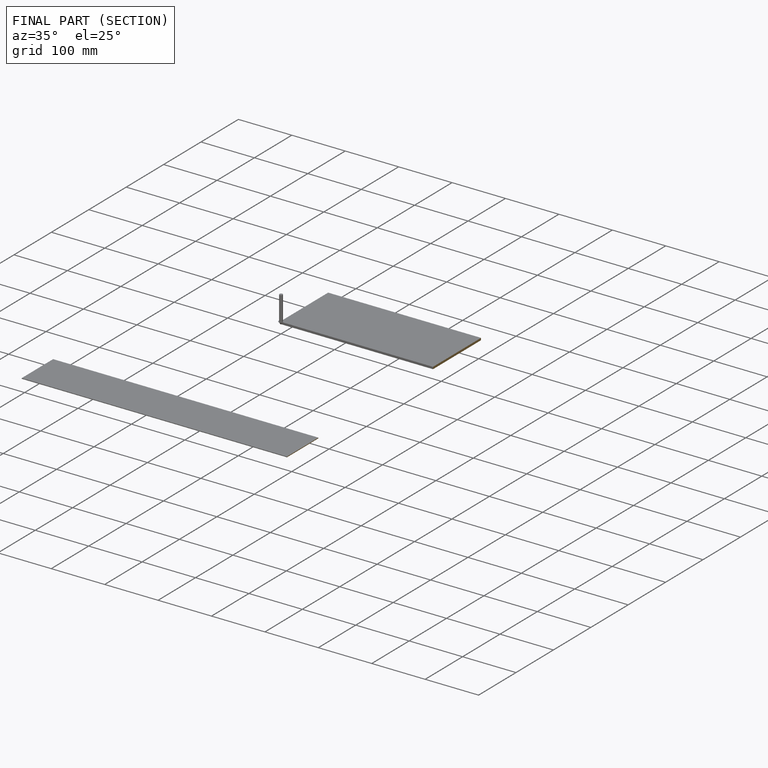
[diagram: finished part — half-section view (interior)]
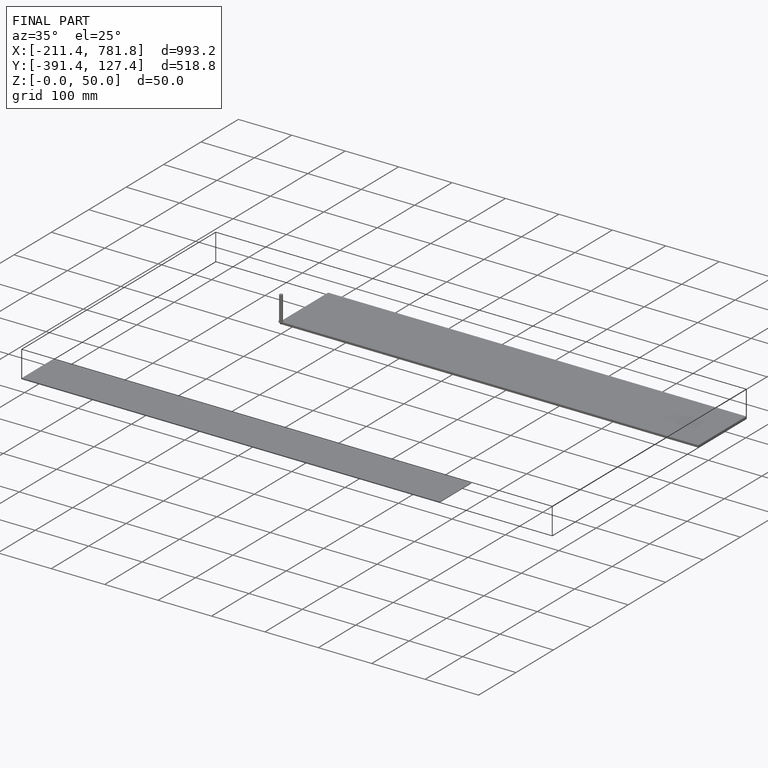
[diagram: finished part — iso view with bounding-box wireframe]
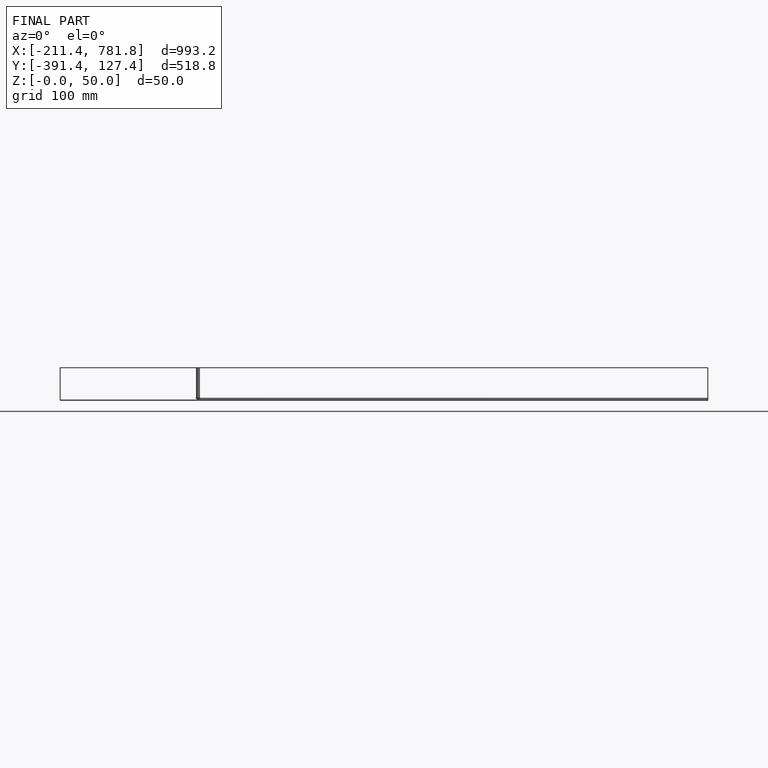
[diagram: finished part — front view with bounding-box wireframe]
